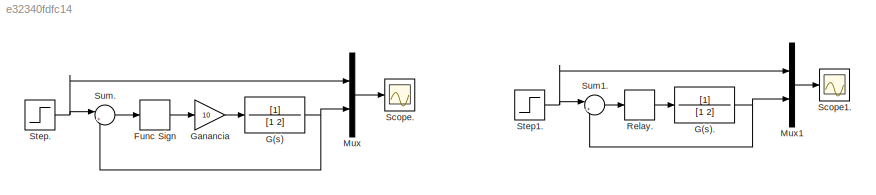
MODEL slx_e32340fdfc14
KIND model
CONFIG AbsTol = auto
CONFIG EnableMultiTasking = off
CONFIG FixedStep = auto
CONFIG MaxStep = auto
CONFIG MinStep = auto
CONFIG RelTol = 1e-3
CONFIG SampleTimeConstraint = Unconstrained
CONFIG SolverName = VariableStepAuto
CONFIG StartTime = 0.0
CONFIG StopTime = 20
BLOCK [Signum] Func Sign
  ZeroCross = off
BLOCK [TransferFcn] G(s)
  Denominator = [1 2]
BLOCK [TransferFcn] G(s).
  Denominator = [1 2]
BLOCK [Gain] Ganancia
  Gain = 10
BLOCK [Mux] Mux
  DisplayOption = bar
  Inputs = 2
BLOCK [Mux] Mux1
  DisplayOption = bar
  Inputs = 2
BLOCK [Relay] Relay.
  OffOutputValue = 2
  OffSwitchValue = -0.05
  OnOutputValue = 10
  OnSwitchValue = 0.05
BLOCK [Scope] Scope.
  Floating = off
  NumInputPorts = 1
  ScopeSpecificationString = Simulink.scopes.TimeScopeBlockCfg('CurrentConfiguration', extmgr.ConfigurationSet(extmgr.Configuration('Core','General UI',true,'FigureColor',[1 1 1]),extmgr.Configuration('Core','Source UI',true),extmgr.Configuration('Sources','WiredSimulink',true),extmgr.Configuration('Visuals','Time Domain',true,'SerializedDisplays',{struct('MinYLimReal','-0.2517','MaxYLimReal','2.26528','YLabelReal','','MinYLi...<+2324ch>
BLOCK [Scope] Scope1.
  Floating = off
  NumInputPorts = 1
  ScopeSpecificationString = Simulink.scopes.TimeScopeBlockCfg('CurrentConfiguration', extmgr.ConfigurationSet(extmgr.Configuration('Core','General UI',true,'FigureColor',[1 1 1]),extmgr.Configuration('Core','Source UI',true),extmgr.Configuration('Sources','WiredSimulink',true,'DataLoggingVariableName','ScopeData1'),extmgr.Configuration('Visuals','Time Domain',true,'SerializedDisplays',{struct('MinYLimReal','-0.25625','MaxYLi...<+1624ch>
BLOCK [Step] Step.
  After = 2
  Before = 1
  SampleTime = 0
  Time = 10
BLOCK [Step] Step1.
  After = 2
  Before = 1
  SampleTime = 0
  Time = 10
BLOCK [Sum] Sum.
  Inputs = |+-
  NameLocation = top
BLOCK [Sum] Sum1.
  Inputs = |+-
  NameLocation = top
LINE Func Sign:1 -> Ganancia:1
NET G(s).:1 -> Mux1:2, Sum1.:2
NET G(s):1 -> Mux:2, Sum.:2
LINE Ganancia:1 -> G(s):1
LINE Mux1:1 -> Scope1.:1
LINE Mux:1 -> Scope.:1
LINE Relay.:1 -> G(s).:1
NET Step.:1 -> Mux:1, Sum.:1
NET Step1.:1 -> Mux1:1, Sum1.:1
LINE Sum.:1 -> Func Sign:1
LINE Sum1.:1 -> Relay.:1
note: NET lines group one-source signal fan-out (src -> all destinations, sorted); 1:1 wires keep LINE
